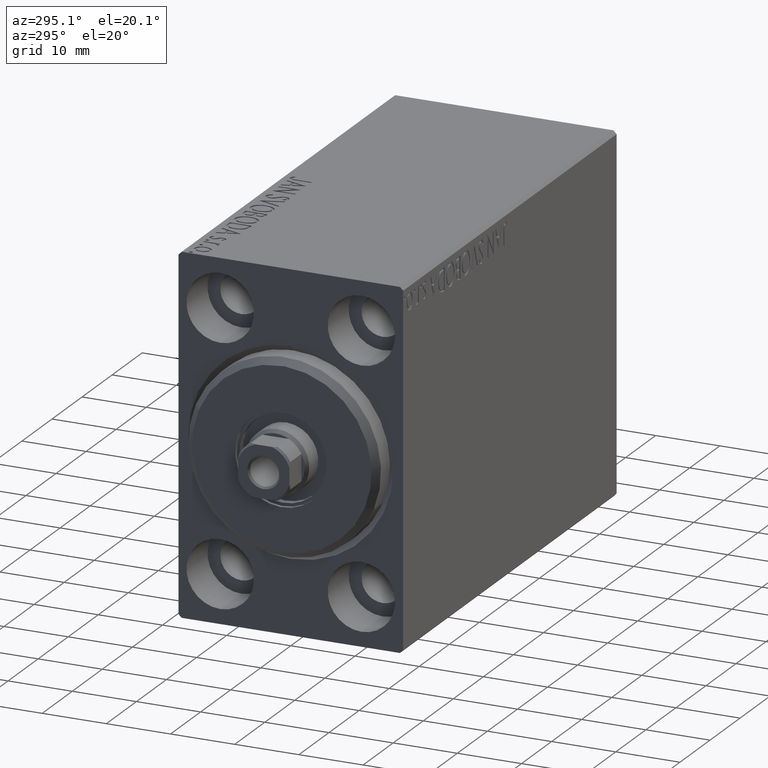
[diagram: clean part render]
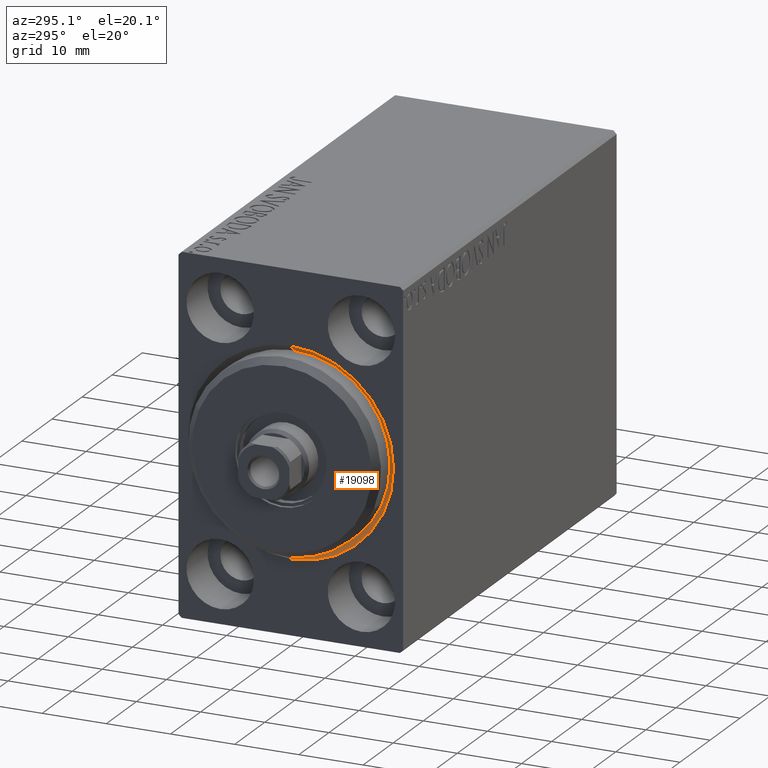
[diagram: same view with one face highlighted and labeled with its STEP entity id]
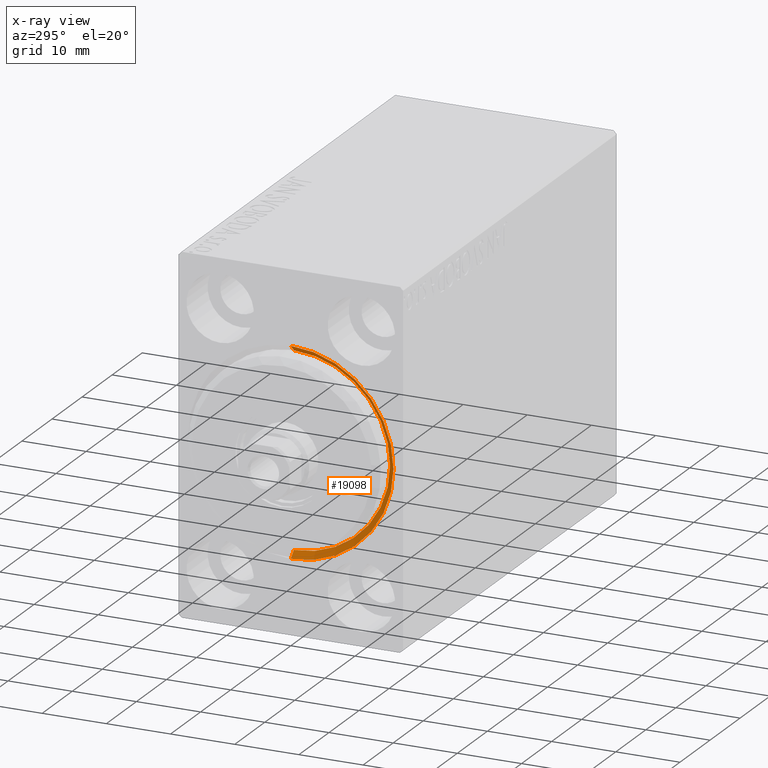
[diagram: x-ray of the same camera — body ghosted, the highlighted face saturated]
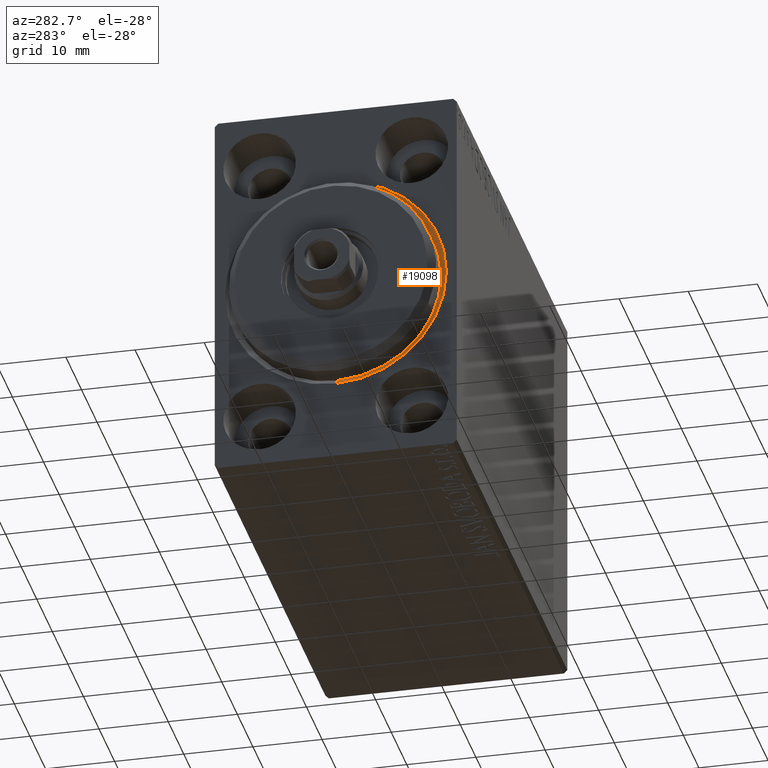
[diagram: same view with one face highlighted and labeled with its STEP entity id]
A machine part, auxiliary view. The second image highlights one B-rep face of the part: STEP entity #19098.
The next image is the same camera in x-ray: the body ghosted, the highlighted face saturated — about 0% of this face is hidden behind the body in this view.
A second angle (auxiliary view) of the same face is appended — the face is thin or edge-on in the first view.
In plain terms, the highlighted conical surface has half-angle 45 deg.
Its self-contained STEP definition (entity closure, byte-faithful):
#249 = AXIS2_PLACEMENT_3D ( 'NONE', #33965, #6446, #3121 ) ;
#1824 = DIRECTION ( 'NONE',  ( -1.000000000000000000, 0.000000000000000000, 0.000000000000000000 ) ) ;
#2305 = LINE ( 'NONE', #32491, #7912 ) ;
#2684 = VERTEX_POINT ( 'NONE', #26456 ) ;
#3121 = DIRECTION ( 'NONE',  ( 0.000000000000000000, 0.000000000000000000, -1.000000000000000000 ) ) ;
#4890 = AXIS2_PLACEMENT_3D ( 'NONE', #28714, #8289, #5181 ) ;
#5181 = DIRECTION ( 'NONE',  ( 0.000000000000000000, 0.000000000000000000, -1.000000000000000000 ) ) ;
#5195 = DIRECTION ( 'NONE',  ( -0.7071067811865469066, 0.000000000000000000, 0.7071067811865482389 ) ) ;
#5914 = CARTESIAN_POINT ( 'NONE',  ( 0.9999999999999991118, 1.836970198721029589E-15, -15.00000000000000000 ) ) ;
#6446 = DIRECTION ( 'NONE',  ( -1.000000000000000000, 0.000000000000000000, 0.000000000000000000 ) ) ;
#6929 = VERTEX_POINT ( 'NONE', #10144 ) ;
#7383 = LINE ( 'NONE', #20919, #22621 ) ;
#7912 = VECTOR ( 'NONE', #5195, 999.9999999999998863 ) ;
#8289 = DIRECTION ( 'NONE',  ( 1.000000000000000000, 0.000000000000000000, 0.000000000000000000 ) ) ;
#8448 = AXIS2_PLACEMENT_3D ( 'NONE', #32240, #1824, #41792 ) ;
#10144 = CARTESIAN_POINT ( 'NONE',  ( 0.000000000000000000, 0.000000000000000000, 16.00000000000000000 ) ) ;
#10447 = VERTEX_POINT ( 'NONE', #41053 ) ;
#11268 = EDGE_CURVE ( 'NONE', #6929, #10447, #24029, .T. ) ;
#11529 = EDGE_CURVE ( 'NONE', #39550, #10447, #7383, .T. ) ;
#11572 = CIRCLE ( 'NONE', #249, 15.00000000000000000 ) ;
#19098 = ADVANCED_FACE ( 'NONE', ( #25352 ), #27606, .F. ) ;
#19609 = ORIENTED_EDGE ( 'NONE', *, *, #11268, .F. ) ;
#20919 = CARTESIAN_POINT ( 'NONE',  ( 0.9999999999999991118, 1.836970198721029589E-15, -15.00000000000000000 ) ) ;
#21596 = ORIENTED_EDGE ( 'NONE', *, *, #35247, .F. ) ;
#22610 = EDGE_LOOP ( 'NONE', ( #21596, #29746, #19609, #25805 ) ) ;
#22621 = VECTOR ( 'NONE', #35278, 999.9999999999998863 ) ;
#24029 = CIRCLE ( 'NONE', #4890, 16.00000000000000000 ) ;
#25352 = FACE_OUTER_BOUND ( 'NONE', #22610, .T. ) ;
#25805 = ORIENTED_EDGE ( 'NONE', *, *, #30233, .F. ) ;
#26456 = CARTESIAN_POINT ( 'NONE',  ( 0.9999999999999991118, 0.000000000000000000, 15.00000000000000000 ) ) ;
#27606 = CONICAL_SURFACE ( 'NONE', #8448, 15.00000000000000000, 0.7853981633974491672 ) ;
#28714 = CARTESIAN_POINT ( 'NONE',  ( 0.000000000000000000, 0.000000000000000000, 0.000000000000000000 ) ) ;
#29746 = ORIENTED_EDGE ( 'NONE', *, *, #11529, .T. ) ;
#30233 = EDGE_CURVE ( 'NONE', #2684, #6929, #2305, .T. ) ;
#32240 = CARTESIAN_POINT ( 'NONE',  ( 0.9999999999999991118, 0.000000000000000000, 0.000000000000000000 ) ) ;
#32491 = CARTESIAN_POINT ( 'NONE',  ( 0.9999999999999991118, 0.000000000000000000, 15.00000000000000000 ) ) ;
#33965 = CARTESIAN_POINT ( 'NONE',  ( 0.9999999999999991118, 0.000000000000000000, 0.000000000000000000 ) ) ;
#35247 = EDGE_CURVE ( 'NONE', #39550, #2684, #11572, .T. ) ;
#35278 = DIRECTION ( 'NONE',  ( -0.7071067811865469066, 8.659560562354942719E-17, -0.7071067811865482389 ) ) ;
#39550 = VERTEX_POINT ( 'NONE', #5914 ) ;
#41053 = CARTESIAN_POINT ( 'NONE',  ( 0.000000000000000000, 1.959434878635765131E-15, -16.00000000000000000 ) ) ;
#41792 = DIRECTION ( 'NONE',  ( 0.000000000000000000, 0.000000000000000000, 1.000000000000000000 ) ) ;